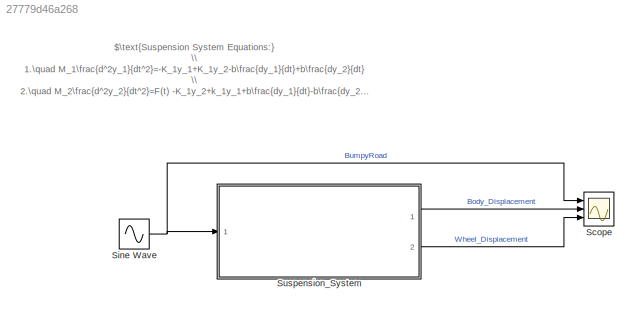
MODEL slx_27779d46a268
KIND model
CONFIG AbsTol = auto
CONFIG EnableMultiTasking = off
CONFIG FixedStep = auto
CONFIG MaxStep = auto
CONFIG MinStep = auto
CONFIG PreLoadFcn = clearvars\nload('Data.mat')
CONFIG RelTol = 1e-3
CONFIG SampleTimeConstraint = Unconstrained
CONFIG SolverName = VariableStepAuto
CONFIG StartTime = 0.0
CONFIG StopTime = 100
BLOCK [Scope] Scope
  Floating = off
  NumInputPorts = 3
  Ports = [3]
  ScopeSpecificationString = Simulink.scopes.TimeScopeBlockCfg('CurrentConfiguration', extmgr.ConfigurationSet(extmgr.Configuration('Core','General UI',true),extmgr.Configuration('Core','Source UI',true),extmgr.Configuration('Sources','WiredSimulink',true),extmgr.Configuration('Visuals','Time Domain',true,'SerializedDisplays',{struct('MinYLimReal','-1.24997','MaxYLimReal','1.24998','YLabelReal','','MinYLimMag','0.00000','MaxY...<+2681ch>
BLOCK [Sin] Sine Wave
  Ports = [0, 1]
  SampleTime = 0
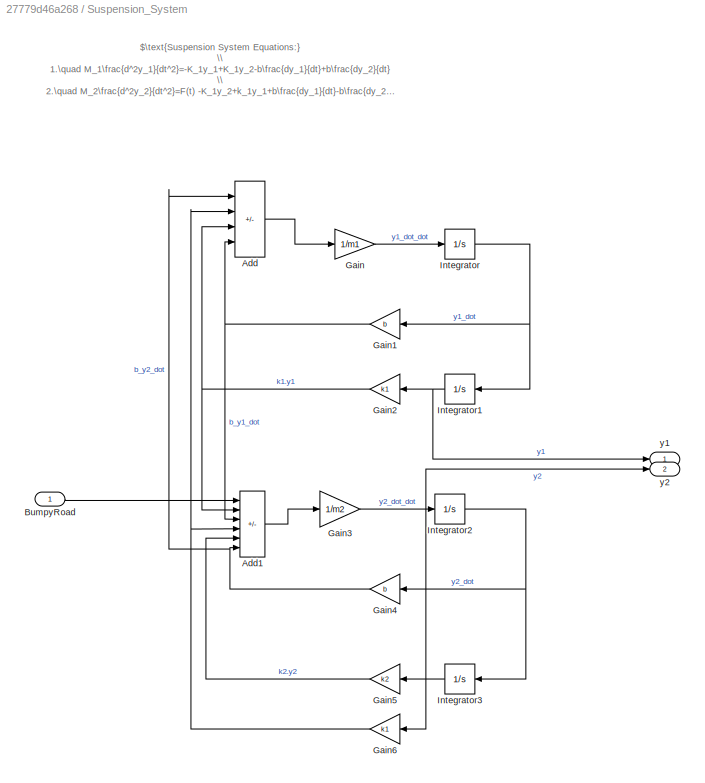
BLOCK [SubSystem] Suspension_System
  Ports = [1, 2]
  RequestExecContextInheritance = off
BLOCK [Sum] Suspension_System/Add
  IconShape = rectangular
  Inputs = ++--
  Ports = [4, 1]
BLOCK [Sum] Suspension_System/Add1
  IconShape = rectangular
  Inputs = +++---
  Ports = [6, 1]
BLOCK [Inport] Suspension_System/BumpyRoad
BLOCK [Gain] Suspension_System/Gain
  Gain = 1/m1
BLOCK [Gain] Suspension_System/Gain1
  Gain = b
  NameLocation = top
BLOCK [Gain] Suspension_System/Gain2
  Gain = k1
  NameLocation = top
BLOCK [Gain] Suspension_System/Gain3
  Gain = 1/m2
BLOCK [Gain] Suspension_System/Gain4
  Gain = b
  NameLocation = top
BLOCK [Gain] Suspension_System/Gain5
  Gain = k2
  NameLocation = top
BLOCK [Gain] Suspension_System/Gain6
  Gain = k1
  NameLocation = top
BLOCK [Integrator] Suspension_System/Integrator
  Ports = [1, 1]
BLOCK [Integrator] Suspension_System/Integrator1
  NameLocation = top
  Ports = [1, 1]
BLOCK [Integrator] Suspension_System/Integrator2
  Ports = [1, 1]
BLOCK [Integrator] Suspension_System/Integrator3
  NameLocation = top
  Ports = [1, 1]
BLOCK [Outport] Suspension_System/y1
BLOCK [Outport] Suspension_System/y2
  Port = 2
ANNOTATION (root): $\text{Suspension System Equations:} \\ 1.\quad M_1\frac{d^2y_1}{dt^2}=-K_1y_1+K_1y_2-b\frac{dy_1}{dt}+b\frac{dy_2}{dt} \\ 2.\quad M_2\frac{d^2y_2}{dt^2}=F(t) -K_1y_2+k_1y_1+b\frac{dy_1}{dt}-b\frac{dy_2}{dt}-K_2y_2$
ANNOTATION Suspension_System: $\text{Suspension System Equations:} \\ 1.\quad M_1\frac{d^2y_1}{dt^2}=-K_1y_1+K_1y_2-b\frac{dy_1}{dt}+b\frac{dy_2}{dt} \\ 2.\quad M_2\frac{d^2y_2}{dt^2}=F(t) -K_1y_2+k_1y_1+b\frac{dy_1}{dt}-b\frac{dy_2}{dt}-K_2y_2$
NET Sine Wave:1 -> Scope:1, Suspension_System:1
LINE Suspension_System/Add1:1 -> Suspension_System/Gain3:1
LINE Suspension_System/Add:1 -> Suspension_System/Gain:1
LINE Suspension_System/BumpyRoad:1 -> Suspension_System/Add1:1
NET Suspension_System/Gain1:1 -> Suspension_System/Add1:3, Suspension_System/Add:4
NET Suspension_System/Gain2:1 -> Suspension_System/Add1:2, Suspension_System/Add:3
LINE Suspension_System/Gain3:1 -> Suspension_System/Integrator2:1
NET Suspension_System/Gain4:1 -> Suspension_System/Add1:6, Suspension_System/Add:1
LINE Suspension_System/Gain5:1 -> Suspension_System/Add1:5
NET Suspension_System/Gain6:1 -> Suspension_System/Add1:4, Suspension_System/Add:2
LINE Suspension_System/Gain:1 -> Suspension_System/Integrator:1
NET Suspension_System/Integrator1:1 -> Suspension_System/Gain2:1, Suspension_System/y1:1
NET Suspension_System/Integrator2:1 -> Suspension_System/Gain4:1, Suspension_System/Integrator3:1
NET Suspension_System/Integrator3:1 -> Suspension_System/Gain5:1, Suspension_System/Gain6:1, Suspension_System/y2:1
NET Suspension_System/Integrator:1 -> Suspension_System/Gain1:1, Suspension_System/Integrator1:1
LINE Suspension_System:1 -> Scope:2
LINE Suspension_System:2 -> Scope:3
note: NET lines group one-source signal fan-out (src -> all destinations, sorted); 1:1 wires keep LINE
